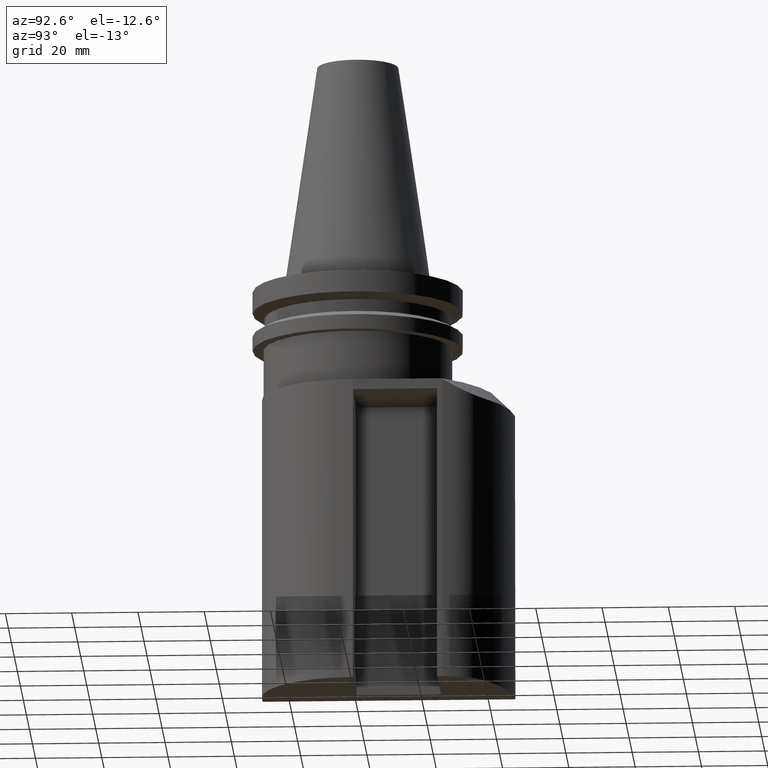
[diagram: clean part render]
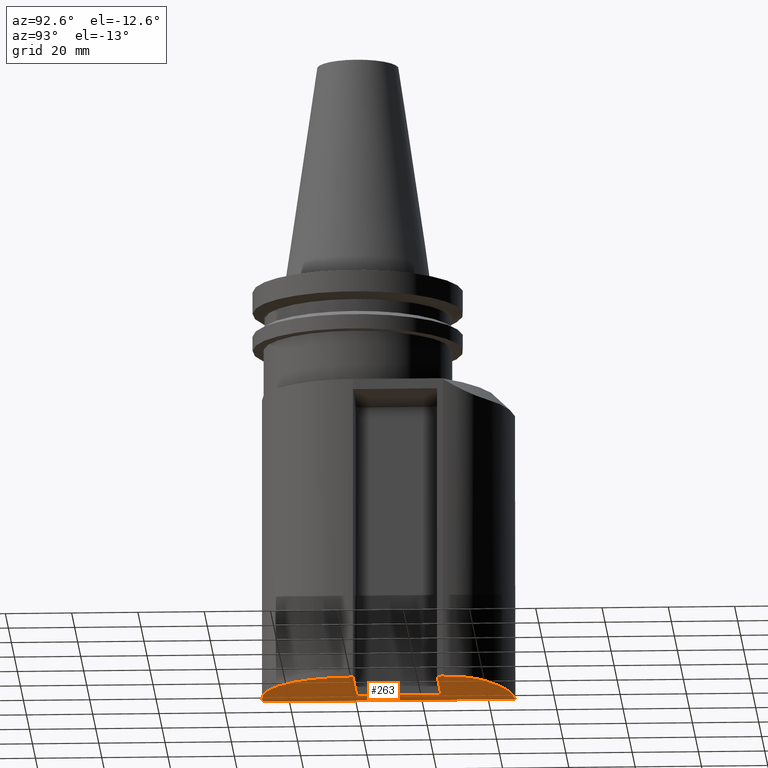
[diagram: same view with one face highlighted and labeled with its STEP entity id]
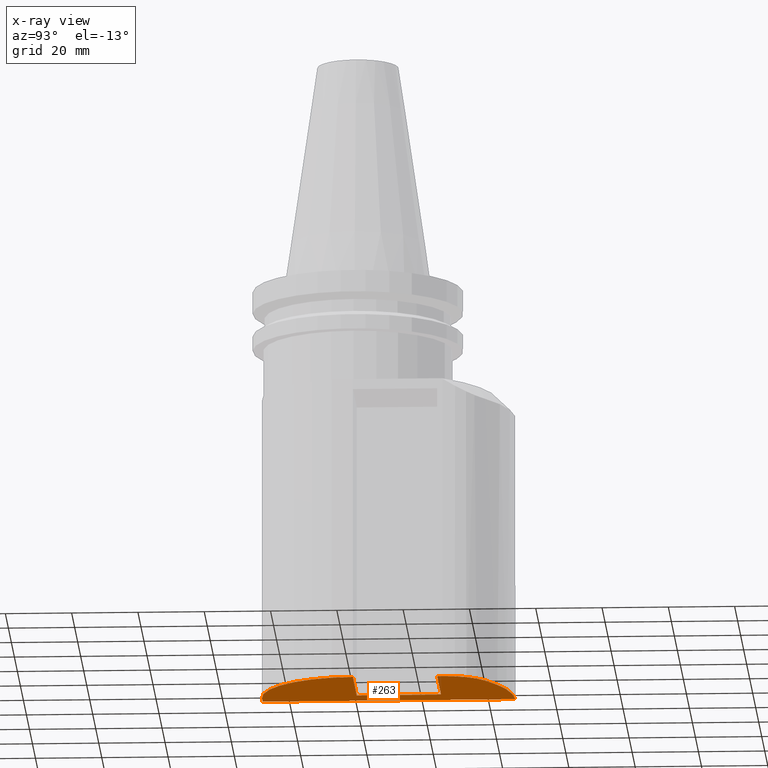
[diagram: x-ray of the same camera — body ghosted, the highlighted face saturated]
A machine part, auxiliary view. The second image highlights one B-rep face of the part: STEP entity #263.
The next image is the same camera in x-ray: the body ghosted, the highlighted face saturated — about 0% of this face is hidden behind the body in this view.
In plain terms, the highlighted planar face has unit normal (-0, -0, -1).
Its self-contained STEP definition (entity closure, byte-faithful):
#109=EDGE_CURVE('Unnamed[1]',#323,#324,#325,.T.);
#120=EDGE_CURVE('Unnamed[1]',#342,#330,#343,.T.);
#127=EDGE_CURVE('Unnamed[1]',#352,#353,#354,.T.);
#162=EDGE_CURVE('Unnamed[1]',#330,#404,#405,.T.);
#177=EDGE_CURVE('Unnamed[1]',#426,#352,#427,.T.);
#195=EDGE_CURVE('Unnamed[1]',#353,#323,#453,.T.);
#222=EDGE_CURVE('Unnamed[1]',#404,#426,#490,.T.);
#263=ADVANCED_FACE('Unnamed[1]',(#542),#543,.T.);
#273=EDGE_CURVE('Unnamed[1]',#324,#474,#558,.T.);
#283=EDGE_CURVE('Unnamed[1]',#474,#342,#571,.T.);
#323=VERTEX_POINT('',#609);
#324=VERTEX_POINT('',#610);
#325=LINE('',#611,#612);
#330=VERTEX_POINT('',#619);
#342=VERTEX_POINT('',#635);
#343=CIRCLE('',#636,15.0);
#352=VERTEX_POINT('',#648);
#353=VERTEX_POINT('',#649);
#354=LINE('',#650,#651);
#404=VERTEX_POINT('',#724);
#405=LINE('',#725,#726);
#426=VERTEX_POINT('',#754);
#427=LINE('',#755,#756);
#453=CIRCLE('',#791,28.75);
#474=VERTEX_POINT('',#819);
#490=LINE('',#845,#846);
#542=FACE_OUTER_BOUND('',#939,.T.);
#543=PLANE('',#940);
#558=LINE('',#959,#960);
#571=CIRCLE('',#997,47.5);
#609=CARTESIAN_POINT('',(4.2499999999996,-28.75,-126.999999999999));
#610=CARTESIAN_POINT('',(4.93396064135662E-013,-28.7499999999999,-126.999999999999));
#611=CARTESIAN_POINT('',(-10.8124999999997,-28.7499999999996,-126.999999999999));
#612=VECTOR('',#1033,1.0);
#619=CARTESIAN_POINT('',(33.0000000000005,27.0601182554631,-126.999999999999));
#635=CARTESIAN_POINT('',(26.3076923076928,39.5494036041481,-126.999999999998));
#636=AXIS2_PLACEMENT_3D('',#1049,#1050,#1051);
#648=CARTESIAN_POINT('',(7.6000000000002,7.60925237655984E-014,-126.999999999999));
#649=CARTESIAN_POINT('',(32.9999999999889,-5.47080671946793E-012,-126.999999999999));
#650=CARTESIAN_POINT('',(-1.72500000000203,1.40411586768512E-013,-126.999999999999));
#651=VECTOR('',#1064,1.0);
#724=CARTESIAN_POINT('',(32.9999999999997,25.4,-126.999999999999));
#725=CARTESIAN_POINT('',(32.9999999999918,6.76502956385232,-126.999999999999));
#726=VECTOR('',#1125,1.0);
#754=CARTESIAN_POINT('',(7.60000000000059,25.4000000000001,-126.999999999999));
#755=CARTESIAN_POINT('',(7.6000000000003,6.34999999999981,-126.999999999999));
#756=VECTOR('',#1156,1.0);
#791=AXIS2_PLACEMENT_3D('',#1187,#1188,#1189);
#819=CARTESIAN_POINT('',(1.18598388089279E-015,47.5,-126.999999999998));
#845=CARTESIAN_POINT('',(-1.7249999999992,25.4000000000001,-126.999999999999));
#846=VECTOR('',#1224,1.0);
#939=EDGE_LOOP('',(#1286,#1287,#1288,#1289,#1290,#1291,#1292,#1293,#1294));
#940=AXIS2_PLACEMENT_3D('',#1295,#1296,#1297);
#959=CARTESIAN_POINT('',(4.72076722075036E-013,-7.7765071745857E-015,-126.999999999999));
#960=VECTOR('',#1313,1.0);
#997=AXIS2_PLACEMENT_3D('',#1323,#1324,#1325);
#1033=DIRECTION('',(-1.0,2.69335411896641E-014,8.85281198231811E-015));
#1049=CARTESIAN_POINT('',(18.0000000000004,27.0601182554697,-126.999999999998));
#1050=DIRECTION('',(-8.85281198231811E-015,-6.1232339957366E-017,-1.0));
#1051=DIRECTION('',(3.06161699786838E-016,1.0,-6.12323399573688E-017));
#1064=DIRECTION('',(1.0,-6.89748664910438E-015,-8.85281198231811E-015));
#1125=DIRECTION('',(-4.26087348483026E-013,-1.0,6.12323399611381E-017));
#1156=DIRECTION('',(-1.50099824510868E-014,-1.0,6.12323399574989E-017));
#1187=CARTESIAN_POINT('',(4.25000000000041,-8.55721950904211E-015,-126.999999999998));
#1188=DIRECTION('',(-8.85281198231811E-015,-6.1232339957366E-017,-1.0));
#1189=DIRECTION('',(3.06161699786838E-016,1.0,-6.12323399573688E-017));
#1224=DIRECTION('',(-1.0,2.42162689628194E-015,8.85281198231811E-015));
#1286=ORIENTED_EDGE('',*,*,#222,.T.);
#1287=ORIENTED_EDGE('',*,*,#177,.T.);
#1288=ORIENTED_EDGE('',*,*,#127,.T.);
#1289=ORIENTED_EDGE('',*,*,#195,.T.);
#1290=ORIENTED_EDGE('',*,*,#109,.T.);
#1291=ORIENTED_EDGE('',*,*,#273,.T.);
#1292=ORIENTED_EDGE('',*,*,#283,.T.);
#1293=ORIENTED_EDGE('',*,*,#120,.T.);
#1294=ORIENTED_EDGE('',*,*,#162,.T.);
#1295=CARTESIAN_POINT('',(-23.7499999999997,-3.4137029526232E-015,-126.999999999998));
#1296=DIRECTION('',(-8.85281198231811E-015,-6.1232339957366E-017,-1.0));
#1297=DIRECTION('',(-1.0,1.83697019872104E-016,8.85281198231811E-015));
#1313=DIRECTION('',(1.83697019872103E-016,1.0,-6.12323399573677E-017));
#1323=CARTESIAN_POINT('',(2.53995999141901E-013,-7.77650717458563E-015,-126.999999999998));
#1324=DIRECTION('',(1.33746078076942E-015,-6.12323399573679E-017,-1.0));
#1325=DIRECTION('',(-1.0,1.83697019872103E-016,-1.33746078076942E-015));